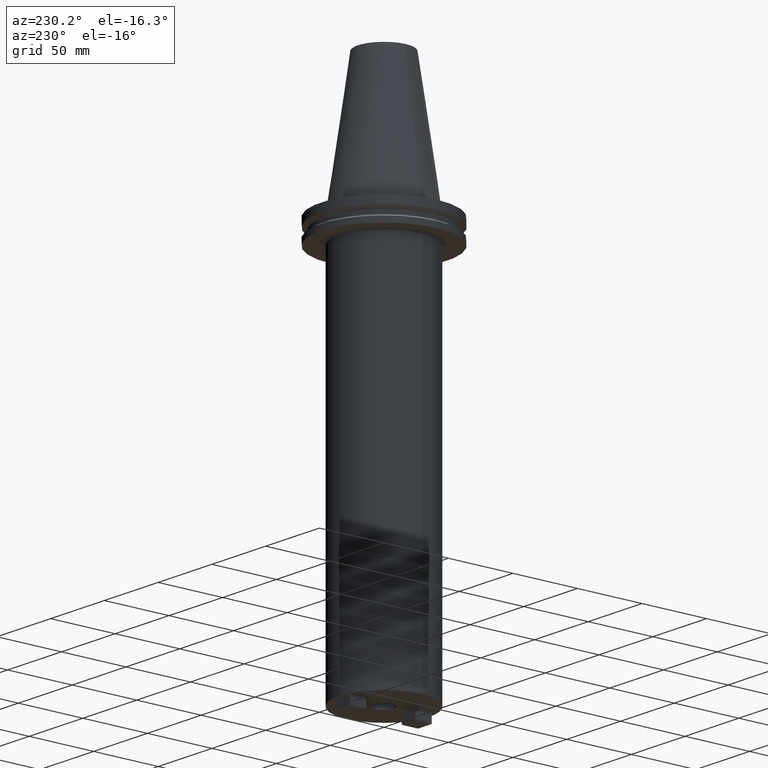
[diagram: clean part render]
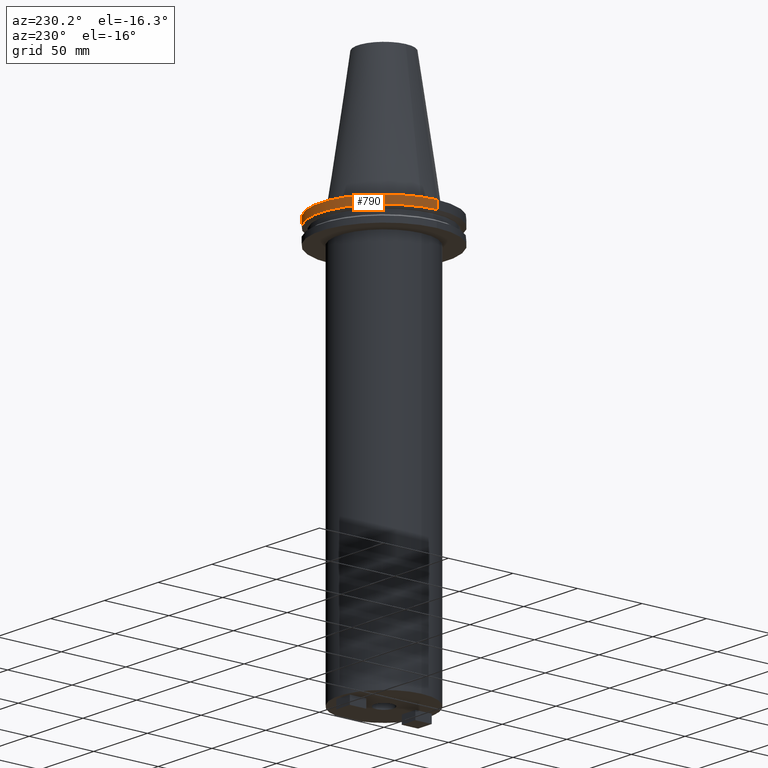
[diagram: same view with one face highlighted and labeled with its STEP entity id]
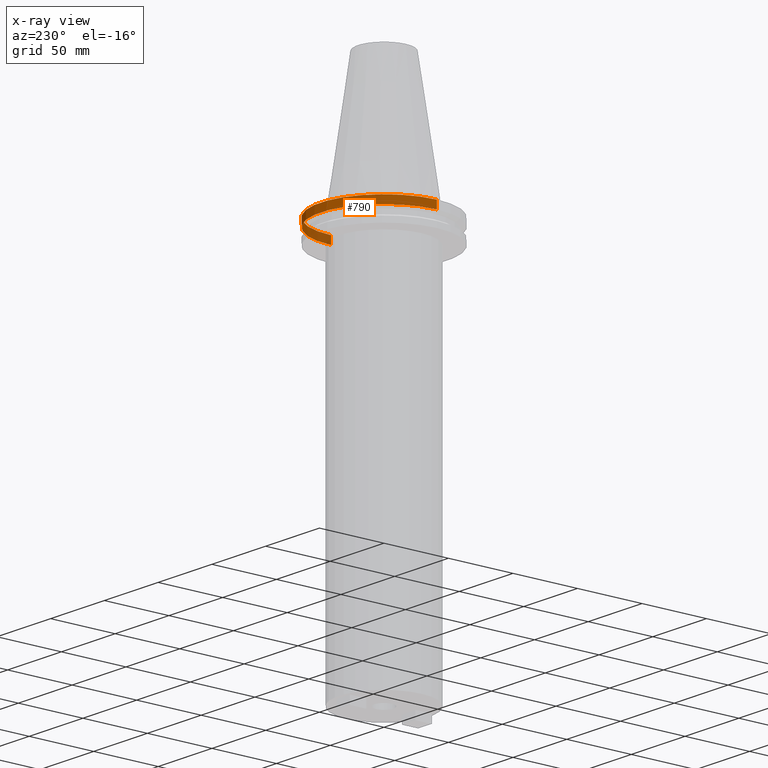
[diagram: x-ray of the same camera — body ghosted, the highlighted face saturated]
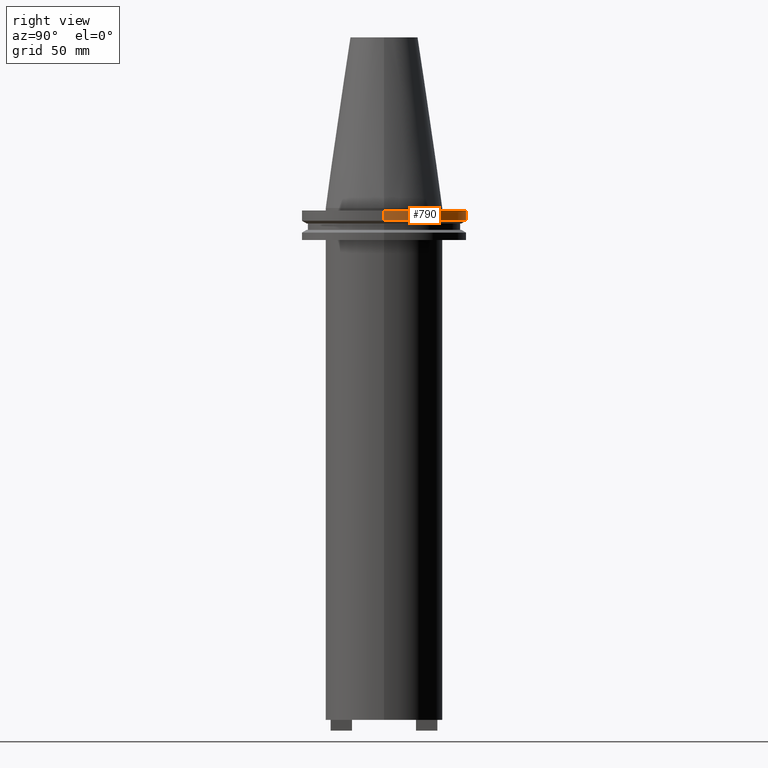
[diagram: same view with one face highlighted and labeled with its STEP entity id]
A machine part, auxiliary view. The second image highlights one B-rep face of the part: STEP entity #790.
The next image is the same camera in x-ray: the body ghosted, the highlighted face saturated — about 11% of this face is hidden behind the body in this view.
A second angle (right view) of the same face is appended — the face is thin or edge-on in the first view.
In plain terms, the highlighted cylindrical surface (partial cylindrical patch) has radius 49.215 mm, axis along (-0, -0, 1).
Its self-contained STEP definition (entity closure, byte-faithful):
#4 = CARTESIAN_POINT ( 'NONE',  ( -49.21500000000000341, 6.027099222003699404E-15, -7.602389855251287187 ) ) ;
#10 = ORIENTED_EDGE ( 'NONE', *, *, #115, .T. ) ;
#36 = VERTEX_POINT ( 'NONE', #768 ) ;
#39 = AXIS2_PLACEMENT_3D ( 'NONE', #345, #555, #172 ) ;
#53 = ORIENTED_EDGE ( 'NONE', *, *, #802, .F. ) ;
#95 = ORIENTED_EDGE ( 'NONE', *, *, #124, .F. ) ;
#100 = CIRCLE ( 'NONE', #402, 49.21499999999999631 ) ;
#101 = DIRECTION ( 'NONE',  ( 1.000000000000000000, 0.000000000000000000, 0.000000000000000000 ) ) ;
#115 = EDGE_CURVE ( 'NONE', #36, #643, #613, .T. ) ;
#124 = EDGE_CURVE ( 'NONE', #36, #287, #1008, .T. ) ;
#164 = DIRECTION ( 'NONE',  ( 1.000000000000000000, 0.000000000000000000, 0.000000000000000000 ) ) ;
#172 = DIRECTION ( 'NONE',  ( 1.000000000000000000, 0.000000000000000000, 0.000000000000000000 ) ) ;
#228 = LINE ( 'NONE', #853, #615 ) ;
#258 = CARTESIAN_POINT ( 'NONE',  ( 0.000000000000000000, 0.000000000000000000, -1.499999999999987566 ) ) ;
#287 = VERTEX_POINT ( 'NONE', #587 ) ;
#313 = CARTESIAN_POINT ( 'NONE',  ( 49.21499999999999631, 0.000000000000000000, 101.5999999999999943 ) ) ;
#317 = DIRECTION ( 'NONE',  ( -0.000000000000000000, -0.000000000000000000, 1.000000000000000000 ) ) ;
#319 = AXIS2_PLACEMENT_3D ( 'NONE', #702, #317, #164 ) ;
#342 = DIRECTION ( 'NONE',  ( -0.000000000000000000, -0.000000000000000000, 1.000000000000000000 ) ) ;
#345 = CARTESIAN_POINT ( 'NONE',  ( 0.000000000000000000, 0.000000000000000000, 101.5999999999999943 ) ) ;
#402 = AXIS2_PLACEMENT_3D ( 'NONE', #258, #342, #101 ) ;
#424 = EDGE_LOOP ( 'NONE', ( #10, #869, #53, #95 ) ) ;
#555 = DIRECTION ( 'NONE',  ( -0.000000000000000000, -0.000000000000000000, 1.000000000000000000 ) ) ;
#587 = CARTESIAN_POINT ( 'NONE',  ( 49.21499999999999631, 0.000000000000000000, -1.499999999999987566 ) ) ;
#591 = VERTEX_POINT ( 'NONE', #944 ) ;
#613 = CIRCLE ( 'NONE', #319, 49.21500000000000341 ) ;
#615 = VECTOR ( 'NONE', #935, 1000.000000000000000 ) ;
#626 = DIRECTION ( 'NONE',  ( -0.000000000000000000, -0.000000000000000000, 1.000000000000000000 ) ) ;
#643 = VERTEX_POINT ( 'NONE', #4 ) ;
#694 = VECTOR ( 'NONE', #626, 1000.000000000000000 ) ;
#702 = CARTESIAN_POINT ( 'NONE',  ( 0.000000000000000000, 0.000000000000000000, -7.602389855251287187 ) ) ;
#715 = EDGE_CURVE ( 'NONE', #643, #591, #228, .T. ) ;
#768 = CARTESIAN_POINT ( 'NONE',  ( 49.21500000000000341, 0.000000000000000000, -7.602389855251287187 ) ) ;
#790 = ADVANCED_FACE ( 'NONE', ( #960 ), #963, .T. ) ;
#802 = EDGE_CURVE ( 'NONE', #287, #591, #100, .T. ) ;
#853 = CARTESIAN_POINT ( 'NONE',  ( -49.21499999999999631, 6.027099222003697826E-15, 101.5999999999999943 ) ) ;
#869 = ORIENTED_EDGE ( 'NONE', *, *, #715, .T. ) ;
#935 = DIRECTION ( 'NONE',  ( -0.000000000000000000, -0.000000000000000000, 1.000000000000000000 ) ) ;
#944 = CARTESIAN_POINT ( 'NONE',  ( -49.21499999999999631, 6.027099222003697826E-15, -1.499999999999987566 ) ) ;
#960 = FACE_OUTER_BOUND ( 'NONE', #424, .T. ) ;
#963 = CYLINDRICAL_SURFACE ( 'NONE', #39, 49.21499999999999631 ) ;
#1008 = LINE ( 'NONE', #313, #694 ) ;